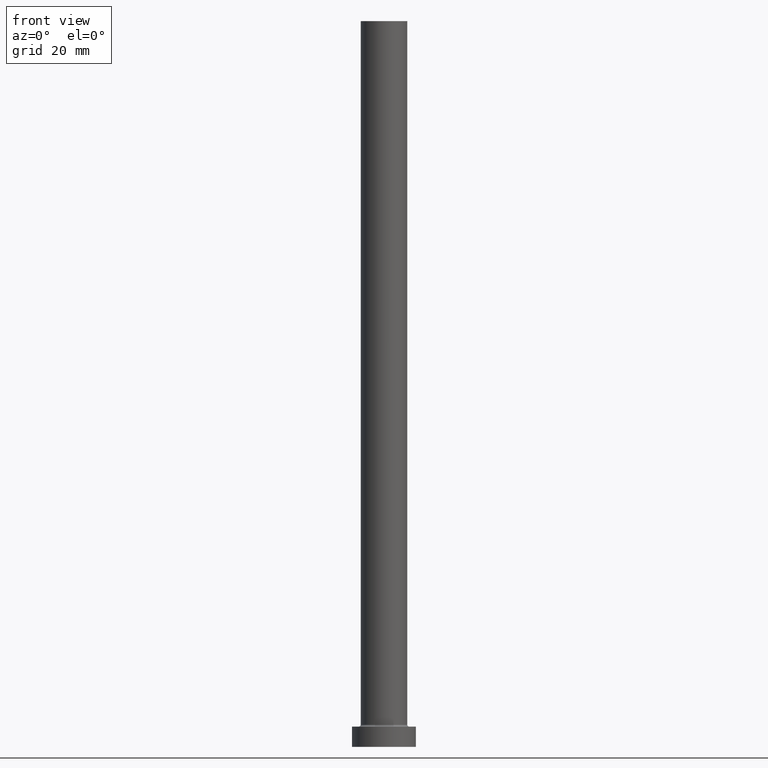
[diagram: clean part render]
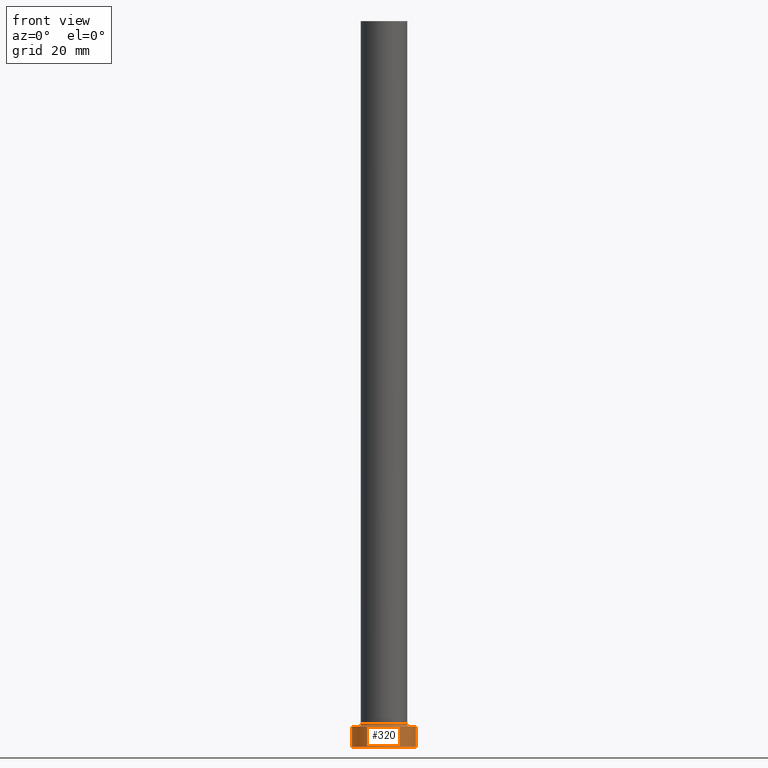
[diagram: same view with one face highlighted and labeled with its STEP entity id]
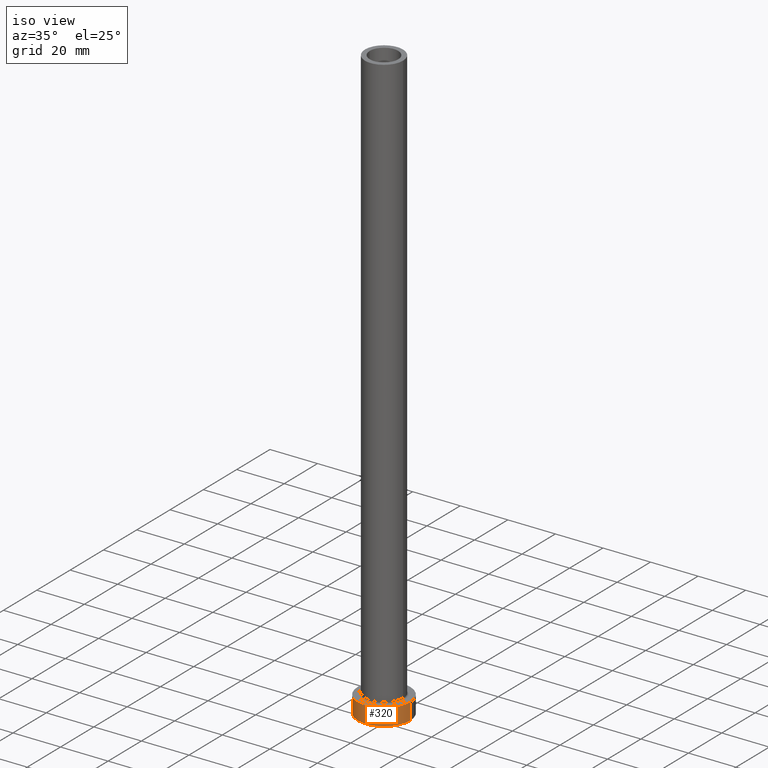
[diagram: same view with one face highlighted and labeled with its STEP entity id]
A machine part, front view. The second image highlights one B-rep face of the part: STEP entity #320.
A second angle (iso view) of the same face is appended — the face is thin or edge-on in the first view.
In plain terms, the highlighted cylindrical surface (edge-blend (fillet) strip) has radius 11 mm, axis along (-0, -0, -1).
Its self-contained STEP definition (entity closure, byte-faithful):
#34 = ORIENTED_EDGE ( 'NONE', *, *, #310, .F. ) ;
#47 = VECTOR ( 'NONE', #105, 1000.000000000000000 ) ;
#53 = CARTESIAN_POINT ( 'NONE',  ( 11.00000000000000000, 1.347111479062088405E-15, 0.000000000000000000 ) ) ;
#64 = DIRECTION ( 'NONE',  ( 0.000000000000000000, 0.000000000000000000, 1.000000000000000000 ) ) ;
#68 = VERTEX_POINT ( 'NONE', #316 ) ;
#69 = ORIENTED_EDGE ( 'NONE', *, *, #427, .T. ) ;
#88 = DIRECTION ( 'NONE',  ( -0.000000000000000000, -0.000000000000000000, -1.000000000000000000 ) ) ;
#91 = DIRECTION ( 'NONE',  ( 1.000000000000000000, 0.000000000000000000, 0.000000000000000000 ) ) ;
#99 = VERTEX_POINT ( 'NONE', #414 ) ;
#105 = DIRECTION ( 'NONE',  ( -0.000000000000000000, -0.000000000000000000, -1.000000000000000000 ) ) ;
#114 = AXIS2_PLACEMENT_3D ( 'NONE', #307, #64, #201 ) ;
#135 = CARTESIAN_POINT ( 'NONE',  ( -11.00000000000000000, 0.000000000000000000, 7.000000000000000000 ) ) ;
#170 = CIRCLE ( 'NONE', #114, 11.00000000000000000 ) ;
#182 = VERTEX_POINT ( 'NONE', #227 ) ;
#201 = DIRECTION ( 'NONE',  ( 1.000000000000000000, 0.000000000000000000, 0.000000000000000000 ) ) ;
#207 = LINE ( 'NONE', #135, #47 ) ;
#215 = DIRECTION ( 'NONE',  ( -0.000000000000000000, -0.000000000000000000, -1.000000000000000000 ) ) ;
#224 = VECTOR ( 'NONE', #215, 1000.000000000000000 ) ;
#227 = CARTESIAN_POINT ( 'NONE',  ( -11.00000000000000000, 0.000000000000000000, 7.000000000000000000 ) ) ;
#229 = DIRECTION ( 'NONE',  ( -1.000000000000000000, 0.000000000000000000, 0.000000000000000000 ) ) ;
#261 = CYLINDRICAL_SURFACE ( 'NONE', #339, 11.00000000000000000 ) ;
#269 = DIRECTION ( 'NONE',  ( 0.000000000000000000, 0.000000000000000000, 1.000000000000000000 ) ) ;
#285 = CIRCLE ( 'NONE', #457, 11.00000000000000000 ) ;
#296 = LINE ( 'NONE', #438, #224 ) ;
#307 = CARTESIAN_POINT ( 'NONE',  ( 0.000000000000000000, 0.000000000000000000, 7.000000000000000000 ) ) ;
#310 = EDGE_CURVE ( 'NONE', #99, #437, #296, .T. ) ;
#316 = CARTESIAN_POINT ( 'NONE',  ( -11.00000000000000000, 0.000000000000000000, 0.000000000000000000 ) ) ;
#320 = ADVANCED_FACE ( 'NONE', ( #440 ), #261, .T. ) ;
#339 = AXIS2_PLACEMENT_3D ( 'NONE', #399, #88, #229 ) ;
#342 = EDGE_CURVE ( 'NONE', #182, #99, #170, .T. ) ;
#351 = EDGE_LOOP ( 'NONE', ( #34, #397, #423, #69 ) ) ;
#380 = EDGE_CURVE ( 'NONE', #182, #68, #207, .T. ) ;
#397 = ORIENTED_EDGE ( 'NONE', *, *, #342, .F. ) ;
#399 = CARTESIAN_POINT ( 'NONE',  ( 0.000000000000000000, 0.000000000000000000, 7.000000000000000000 ) ) ;
#414 = CARTESIAN_POINT ( 'NONE',  ( 11.00000000000000000, 1.347111479062088405E-15, 7.000000000000000000 ) ) ;
#423 = ORIENTED_EDGE ( 'NONE', *, *, #380, .T. ) ;
#427 = EDGE_CURVE ( 'NONE', #68, #437, #285, .T. ) ;
#437 = VERTEX_POINT ( 'NONE', #53 ) ;
#438 = CARTESIAN_POINT ( 'NONE',  ( 11.00000000000000000, 1.347111479062088405E-15, 7.000000000000000000 ) ) ;
#440 = FACE_OUTER_BOUND ( 'NONE', #351, .T. ) ;
#445 = CARTESIAN_POINT ( 'NONE',  ( 0.000000000000000000, 0.000000000000000000, 0.000000000000000000 ) ) ;
#457 = AXIS2_PLACEMENT_3D ( 'NONE', #445, #269, #91 ) ;